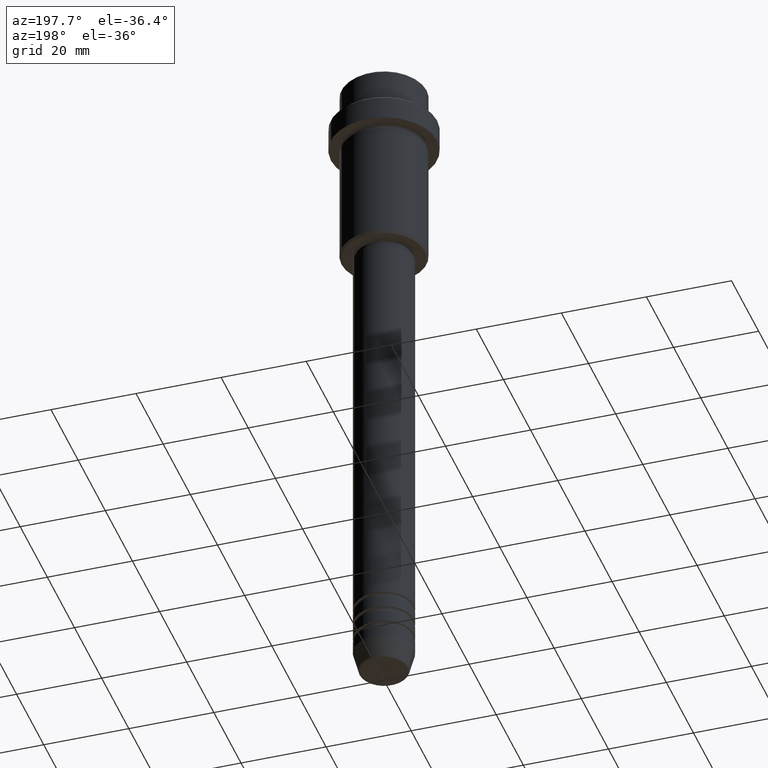
[diagram: clean part render]
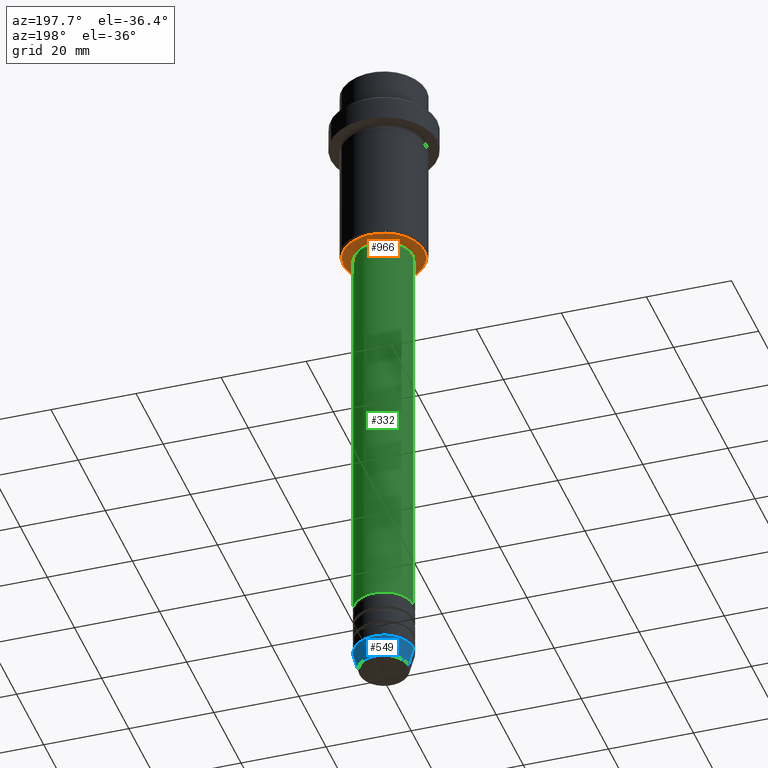
[diagram: same view with three faces highlighted in distinct colors, each labeled with its STEP entity id]
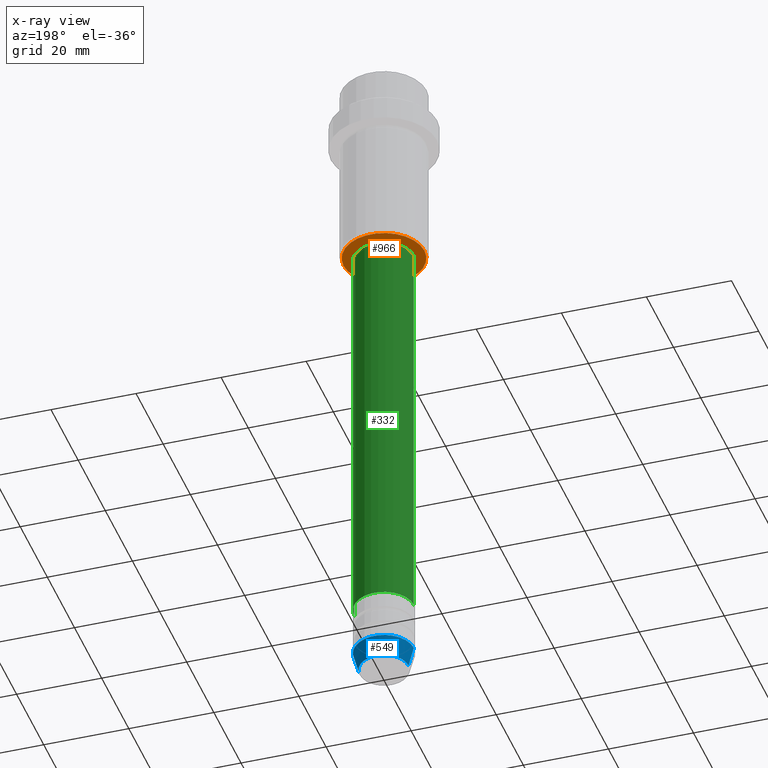
[diagram: x-ray of the same camera — body ghosted, the three highlighted faces saturated]
A machine part, auxiliary view with three faces highlighted in distinct colors.
The next image is the same camera in x-ray (body ghosted, the three faces saturated) — at least one of them is partly hidden behind the body in this view.
Their STEP definitions:

[orange] entity #966 — the highlighted planar face has unit normal (0, 0, -1).
#12 = EDGE_CURVE ( 'NONE', #1003, #136, #295, .T. ) ;
#106 = ORIENTED_EDGE ( 'NONE', *, *, #677, .T. ) ;
#136 = VERTEX_POINT ( 'NONE', #504 ) ;
#195 = DIRECTION ( 'NONE',  ( -0.000000000000000000, -0.000000000000000000, 1.000000000000000000 ) ) ;
#222 = CARTESIAN_POINT ( 'NONE',  ( 0.000000000000000000, 0.000000000000000000, -45.00000000000000711 ) ) ;
#226 = ORIENTED_EDGE ( 'NONE', *, *, #12, .T. ) ;
#295 = CIRCLE ( 'NONE', #632, 9.500000000000008882 ) ;
#432 = AXIS2_PLACEMENT_3D ( 'NONE', #604, #1054, #709 ) ;
#438 = CARTESIAN_POINT ( 'NONE',  ( 0.000000000000000000, 0.000000000000000000, -45.00000000000000711 ) ) ;
#478 = CIRCLE ( 'NONE', #944, 9.500000000000008882 ) ;
#504 = CARTESIAN_POINT ( 'NONE',  ( -9.500000000000008882, 1.194030629168669864E-15, -45.00000000000000711 ) ) ;
#518 = AXIS2_PLACEMENT_3D ( 'NONE', #1161, #1149, #954 ) ;
#532 = DIRECTION ( 'NONE',  ( 0.000000000000000000, 0.000000000000000000, -1.000000000000000000 ) ) ;
#571 = DIRECTION ( 'NONE',  ( 0.000000000000000000, 0.000000000000000000, -1.000000000000000000 ) ) ;
#586 = PLANE ( 'NONE',  #518 ) ;
#595 = EDGE_LOOP ( 'NONE', ( #226, #1379 ) ) ;
#596 = FACE_BOUND ( 'NONE', #1098, .T. ) ;
#604 = CARTESIAN_POINT ( 'NONE',  ( 0.000000000000000000, 0.000000000000000000, -45.00000000000000711 ) ) ;
#608 = CARTESIAN_POINT ( 'NONE',  ( 9.500000000000008882, 0.000000000000000000, -45.00000000000000711 ) ) ;
#632 = AXIS2_PLACEMENT_3D ( 'NONE', #222, #571, #1391 ) ;
#677 = EDGE_CURVE ( 'NONE', #832, #1210, #765, .T. ) ;
#709 = DIRECTION ( 'NONE',  ( 1.000000000000000000, 0.000000000000000000, 0.000000000000000000 ) ) ;
#736 = EDGE_CURVE ( 'NONE', #136, #1003, #478, .T. ) ;
#746 = ORIENTED_EDGE ( 'NONE', *, *, #927, .T. ) ;
#765 = CIRCLE ( 'NONE', #810, 6.499999999999994671 ) ;
#810 = AXIS2_PLACEMENT_3D ( 'NONE', #988, #195, #1288 ) ;
#832 = VERTEX_POINT ( 'NONE', #914 ) ;
#914 = CARTESIAN_POINT ( 'NONE',  ( 6.499999999999994671, 0.000000000000000000, -45.00000000000000711 ) ) ;
#927 = EDGE_CURVE ( 'NONE', #1210, #832, #1065, .T. ) ;
#944 = AXIS2_PLACEMENT_3D ( 'NONE', #438, #532, #999 ) ;
#954 = DIRECTION ( 'NONE',  ( -1.000000000000000000, 0.000000000000000000, -0.000000000000000000 ) ) ;
#966 = ADVANCED_FACE ( 'NONE', ( #1155, #596 ), #586, .T. ) ;
#988 = CARTESIAN_POINT ( 'NONE',  ( 0.000000000000000000, 0.000000000000000000, -45.00000000000000711 ) ) ;
#999 = DIRECTION ( 'NONE',  ( -1.000000000000000000, 0.000000000000000000, 0.000000000000000000 ) ) ;
#1003 = VERTEX_POINT ( 'NONE', #608 ) ;
#1054 = DIRECTION ( 'NONE',  ( -0.000000000000000000, -0.000000000000000000, 1.000000000000000000 ) ) ;
#1065 = CIRCLE ( 'NONE', #432, 6.499999999999994671 ) ;
#1079 = CARTESIAN_POINT ( 'NONE',  ( -6.499999999999994671, 7.960204194457788574E-16, -45.00000000000000711 ) ) ;
#1098 = EDGE_LOOP ( 'NONE', ( #106, #746 ) ) ;
#1149 = DIRECTION ( 'NONE',  ( 0.000000000000000000, 0.000000000000000000, -1.000000000000000000 ) ) ;
#1155 = FACE_OUTER_BOUND ( 'NONE', #595, .T. ) ;
#1161 = CARTESIAN_POINT ( 'NONE',  ( 0.000000000000000000, 10.00000000000000000, -45.00000000000000711 ) ) ;
#1210 = VERTEX_POINT ( 'NONE', #1079 ) ;
#1288 = DIRECTION ( 'NONE',  ( 1.000000000000000000, 0.000000000000000000, 0.000000000000000000 ) ) ;
#1379 = ORIENTED_EDGE ( 'NONE', *, *, #736, .T. ) ;
#1391 = DIRECTION ( 'NONE',  ( -1.000000000000000000, 0.000000000000000000, 0.000000000000000000 ) ) ;

[blue] entity #549 — the highlighted conical surface has half-angle 15 deg.
#3 = DIRECTION ( 'NONE',  ( -0.000000000000000000, -0.000000000000000000, 1.000000000000000000 ) ) ;
#20 = EDGE_LOOP ( 'NONE', ( #979, #702, #823, #634 ) ) ;
#35 = VERTEX_POINT ( 'NONE', #146 ) ;
#36 = CONICAL_SURFACE ( 'NONE', #1382, 7.000000000000000000, 0.2617993877991514617 ) ;
#146 = CARTESIAN_POINT ( 'NONE',  ( 7.000000000000000000, 0.000000000000000000, -155.0000000000000000 ) ) ;
#281 = EDGE_CURVE ( 'NONE', #35, #482, #850, .T. ) ;
#282 = LINE ( 'NONE', #609, #737 ) ;
#353 = DIRECTION ( 'NONE',  ( 0.2588190451025227379, 0.000000000000000000, 0.9659258262890676461 ) ) ;
#364 = AXIS2_PLACEMENT_3D ( 'NONE', #774, #540, #972 ) ;
#402 = AXIS2_PLACEMENT_3D ( 'NONE', #417, #3, #649 ) ;
#417 = CARTESIAN_POINT ( 'NONE',  ( 0.000000000000000000, 0.000000000000000000, -155.0000000000000000 ) ) ;
#456 = EDGE_CURVE ( 'NONE', #1283, #482, #282, .T. ) ;
#465 = CARTESIAN_POINT ( 'NONE',  ( 5.759553456999437770, 0.000000000000000000, -159.6294095225512137 ) ) ;
#482 = VERTEX_POINT ( 'NONE', #1051 ) ;
#540 = DIRECTION ( 'NONE',  ( -0.000000000000000000, -0.000000000000000000, 1.000000000000000000 ) ) ;
#549 = ADVANCED_FACE ( 'NONE', ( #1264 ), #36, .T. ) ;
#581 = LINE ( 'NONE', #1036, #1216 ) ;
#609 = CARTESIAN_POINT ( 'NONE',  ( -7.000000000000000000, 8.572527594031473190E-16, -155.0000000000000000 ) ) ;
#625 = DIRECTION ( 'NONE',  ( -0.000000000000000000, -0.000000000000000000, 1.000000000000000000 ) ) ;
#634 = ORIENTED_EDGE ( 'NONE', *, *, #884, .F. ) ;
#649 = DIRECTION ( 'NONE',  ( 1.000000000000000000, 0.000000000000000000, 0.000000000000000000 ) ) ;
#702 = ORIENTED_EDGE ( 'NONE', *, *, #456, .T. ) ;
#730 = EDGE_CURVE ( 'NONE', #1337, #1283, #1150, .T. ) ;
#737 = VECTOR ( 'NONE', #743, 1000.000000000000114 ) ;
#743 = DIRECTION ( 'NONE',  ( -0.2588190451025227379, 3.169619151431788361E-17, 0.9659258262890676461 ) ) ;
#774 = CARTESIAN_POINT ( 'NONE',  ( 0.000000000000000000, 0.000000000000000000, -159.6294095225512137 ) ) ;
#786 = CARTESIAN_POINT ( 'NONE',  ( -5.759553456999437770, 7.812973149831953745E-16, -159.6294095225512137 ) ) ;
#823 = ORIENTED_EDGE ( 'NONE', *, *, #281, .F. ) ;
#850 = CIRCLE ( 'NONE', #402, 7.000000000000000000 ) ;
#884 = EDGE_CURVE ( 'NONE', #1337, #35, #581, .T. ) ;
#942 = DIRECTION ( 'NONE',  ( 1.000000000000000000, 0.000000000000000000, 0.000000000000000000 ) ) ;
#972 = DIRECTION ( 'NONE',  ( 1.000000000000000000, 0.000000000000000000, 0.000000000000000000 ) ) ;
#979 = ORIENTED_EDGE ( 'NONE', *, *, #730, .T. ) ;
#1036 = CARTESIAN_POINT ( 'NONE',  ( 7.000000000000000000, 0.000000000000000000, -155.0000000000000000 ) ) ;
#1051 = CARTESIAN_POINT ( 'NONE',  ( -7.000000000000000000, 8.572527594031473190E-16, -155.0000000000000000 ) ) ;
#1150 = CIRCLE ( 'NONE', #364, 5.759553456999437770 ) ;
#1216 = VECTOR ( 'NONE', #353, 1000.000000000000114 ) ;
#1264 = FACE_OUTER_BOUND ( 'NONE', #20, .T. ) ;
#1283 = VERTEX_POINT ( 'NONE', #786 ) ;
#1337 = VERTEX_POINT ( 'NONE', #465 ) ;
#1356 = CARTESIAN_POINT ( 'NONE',  ( 0.000000000000000000, 0.000000000000000000, -155.0000000000000000 ) ) ;
#1382 = AXIS2_PLACEMENT_3D ( 'NONE', #1356, #625, #942 ) ;

[green] entity #332 — the highlighted cylindrical surface (edge-blend (fillet) strip) has radius 7 mm, axis along (-0, -0, 1).
#26 = DIRECTION ( 'NONE',  ( -0.000000000000000000, -0.000000000000000000, 1.000000000000000000 ) ) ;
#39 = VECTOR ( 'NONE', #1381, 1000.000000000000000 ) ;
#92 = CARTESIAN_POINT ( 'NONE',  ( 7.000000000000000000, 0.000000000000000000, -142.9999999999998863 ) ) ;
#102 = DIRECTION ( 'NONE',  ( -0.000000000000000000, -0.000000000000000000, 1.000000000000000000 ) ) ;
#260 = EDGE_CURVE ( 'NONE', #1141, #414, #526, .T. ) ;
#262 = CARTESIAN_POINT ( 'NONE',  ( -7.000000000000000000, 8.572527594031473190E-16, -46.00000000000000711 ) ) ;
#297 = CIRCLE ( 'NONE', #764, 7.000000000000000000 ) ;
#299 = LINE ( 'NONE', #1073, #39 ) ;
#312 = ORIENTED_EDGE ( 'NONE', *, *, #365, .F. ) ;
#327 = DIRECTION ( 'NONE',  ( -0.000000000000000000, -0.000000000000000000, 1.000000000000000000 ) ) ;
#332 = ADVANCED_FACE ( 'NONE', ( #973 ), #1395, .T. ) ;
#343 = DIRECTION ( 'NONE',  ( 1.000000000000000000, 0.000000000000000000, 0.000000000000000000 ) ) ;
#365 = EDGE_CURVE ( 'NONE', #414, #375, #297, .T. ) ;
#371 = DIRECTION ( 'NONE',  ( 1.000000000000000000, 0.000000000000000000, 0.000000000000000000 ) ) ;
#372 = EDGE_CURVE ( 'NONE', #1141, #886, #1104, .T. ) ;
#375 = VERTEX_POINT ( 'NONE', #262 ) ;
#414 = VERTEX_POINT ( 'NONE', #790 ) ;
#515 = AXIS2_PLACEMENT_3D ( 'NONE', #1194, #327, #343 ) ;
#526 = LINE ( 'NONE', #666, #735 ) ;
#644 = ORIENTED_EDGE ( 'NONE', *, *, #260, .F. ) ;
#666 = CARTESIAN_POINT ( 'NONE',  ( 7.000000000000000000, 0.000000000000000000, 0.000000000000000000 ) ) ;
#735 = VECTOR ( 'NONE', #102, 1000.000000000000000 ) ;
#745 = ORIENTED_EDGE ( 'NONE', *, *, #1163, .T. ) ;
#764 = AXIS2_PLACEMENT_3D ( 'NONE', #818, #26, #371 ) ;
#790 = CARTESIAN_POINT ( 'NONE',  ( 7.000000000000000000, 0.000000000000000000, -46.00000000000000711 ) ) ;
#818 = CARTESIAN_POINT ( 'NONE',  ( 0.000000000000000000, 0.000000000000000000, -46.00000000000000711 ) ) ;
#886 = VERTEX_POINT ( 'NONE', #1335 ) ;
#915 = EDGE_LOOP ( 'NONE', ( #1042, #745, #312, #644 ) ) ;
#916 = CARTESIAN_POINT ( 'NONE',  ( 0.000000000000000000, 0.000000000000000000, -142.9999999999998863 ) ) ;
#973 = FACE_OUTER_BOUND ( 'NONE', #915, .T. ) ;
#1019 = AXIS2_PLACEMENT_3D ( 'NONE', #916, #1247, #1240 ) ;
#1042 = ORIENTED_EDGE ( 'NONE', *, *, #372, .T. ) ;
#1073 = CARTESIAN_POINT ( 'NONE',  ( -7.000000000000000000, 8.572527594031473190E-16, 0.000000000000000000 ) ) ;
#1104 = CIRCLE ( 'NONE', #1019, 7.000000000000000000 ) ;
#1141 = VERTEX_POINT ( 'NONE', #92 ) ;
#1163 = EDGE_CURVE ( 'NONE', #886, #375, #299, .T. ) ;
#1194 = CARTESIAN_POINT ( 'NONE',  ( 0.000000000000000000, 0.000000000000000000, 0.000000000000000000 ) ) ;
#1240 = DIRECTION ( 'NONE',  ( 1.000000000000000000, 0.000000000000000000, 0.000000000000000000 ) ) ;
#1247 = DIRECTION ( 'NONE',  ( -0.000000000000000000, -0.000000000000000000, 1.000000000000000000 ) ) ;
#1335 = CARTESIAN_POINT ( 'NONE',  ( -7.000000000000000000, 8.572527594031473190E-16, -142.9999999999998863 ) ) ;
#1381 = DIRECTION ( 'NONE',  ( -0.000000000000000000, -0.000000000000000000, 1.000000000000000000 ) ) ;
#1395 = CYLINDRICAL_SURFACE ( 'NONE', #515, 7.000000000000000000 ) ;